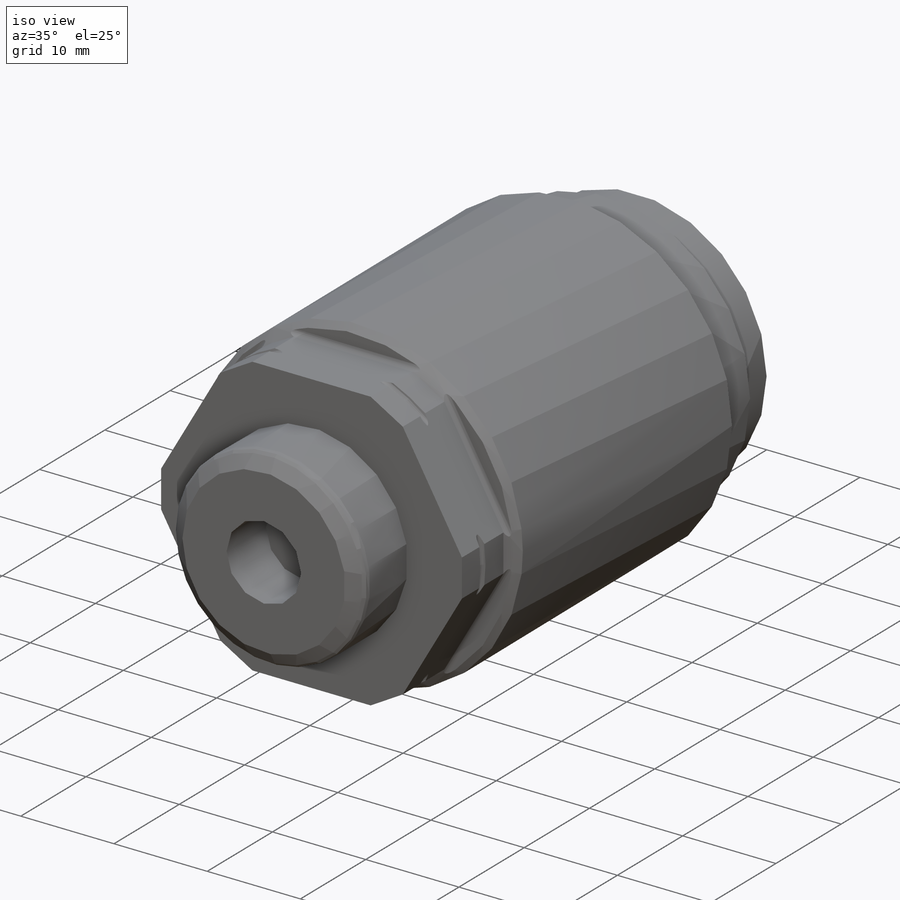
[diagram: iso view]
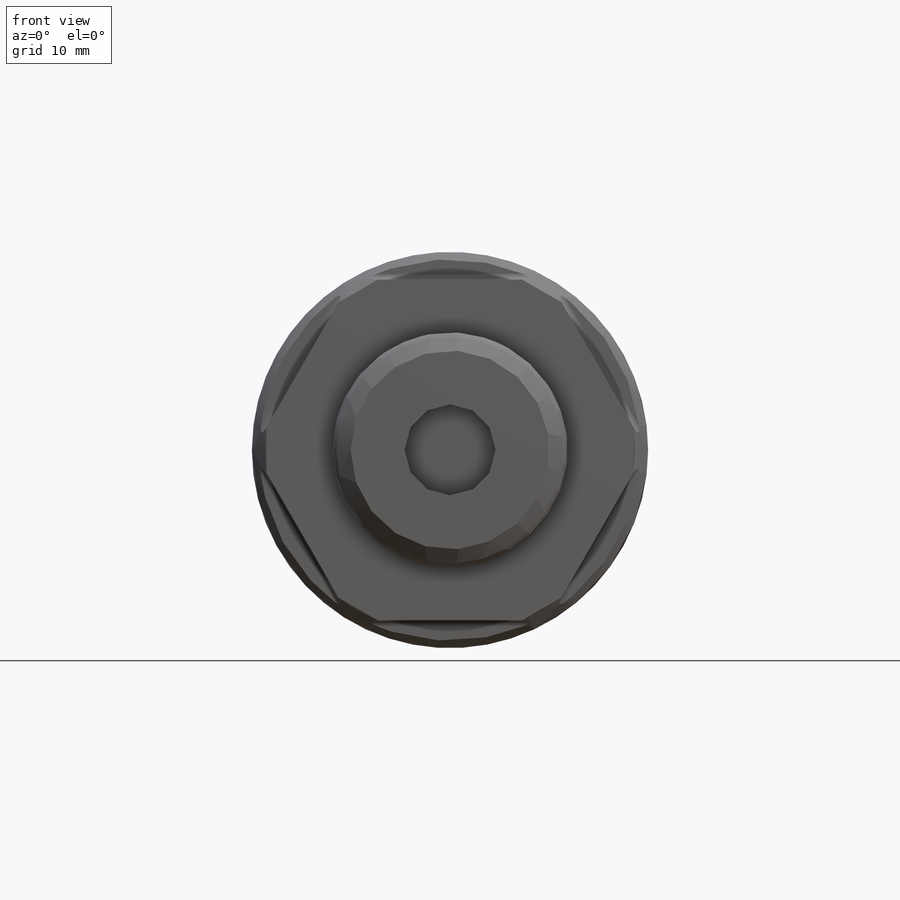
[diagram: front view]
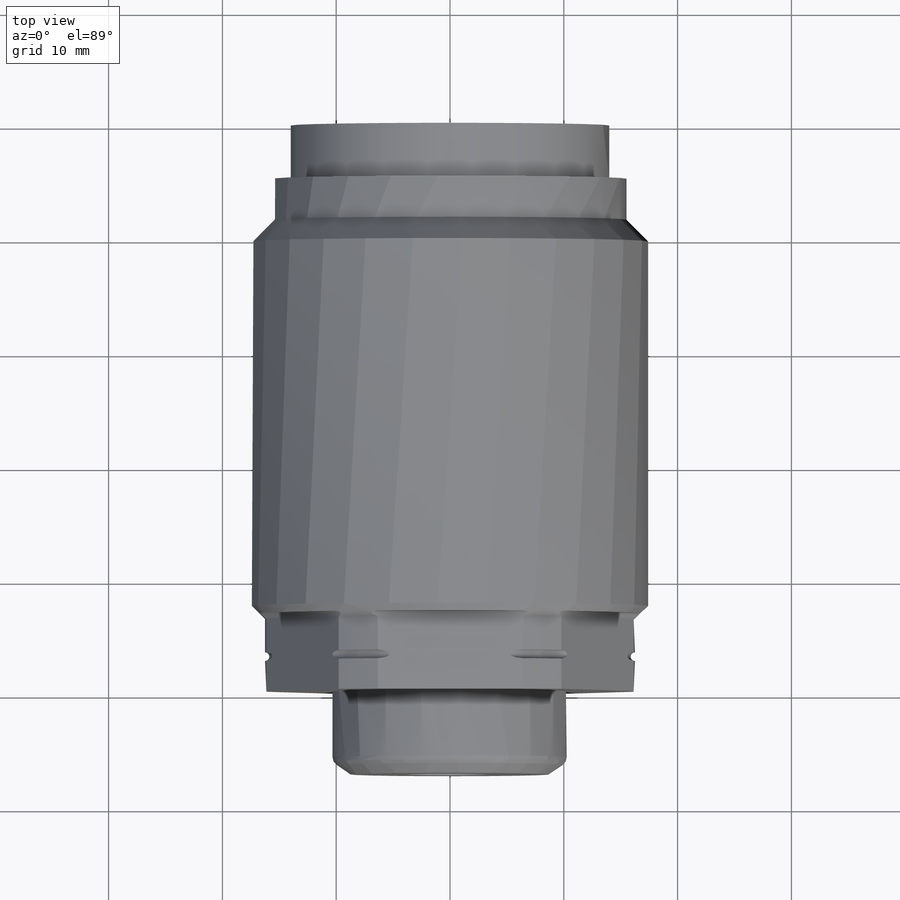
[diagram: top view]
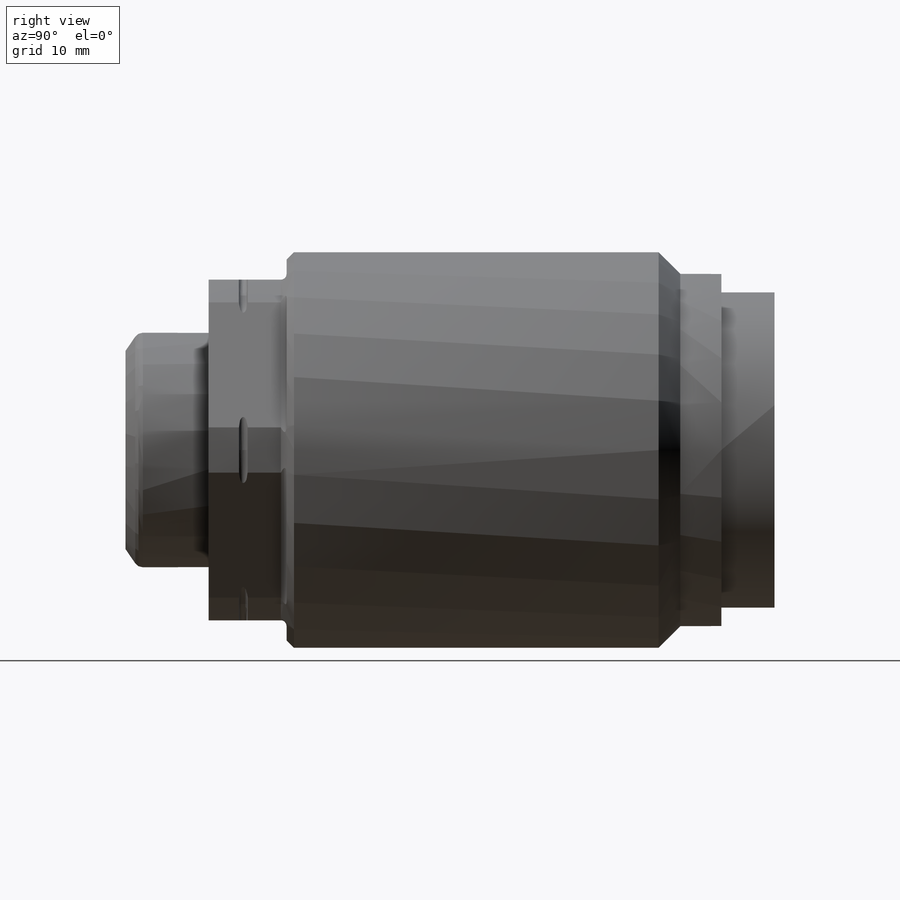
[diagram: right view]
SOLIDWORKS PART (.sldprt)
format: sldprt  version: not decoded by parser v0  size: 335,360 bytes
history: native  units: mm
features: sketch x5, revolve x2, cut_extrude x2, material x1, pattern_circular x1, cut_revolve x1 (+11 scaffold rows collapsed)
feature tree (23):
  scaffold x11  (default folders/planes/origin — collapsed)
  material  "Alloy Steel"
  sketch  "Sketch1"  dims[c1.D1=27.9908mm c1.D2=4.6736mm c1.D3=0.8128mm c1.D4=24.0792mm c1.D5=31.0134mm c1.D6=8.2804mm c1.D7=34.8234mm c1.D8=~16.415711mm c2.D8=45.0deg c2.D9=49.7332mm c2.D10=32.512mm c2.D11=~8.100487mm c3.D11=45.0deg c3.D12=6.35mm]
  revolve  "Revolve1"  Angle=360deg
  sketch  "Sketch2"  dims[D4=0.508mm D1=29.9339mm D2=6.858mm D3=3.175mm]
  cut_extrude  "Cut-Extrude1"  [1 undecoded]
  pattern_circular  "CirPattern1"  Count=6 Angle=360deg
  sketch  "Sketch3"  dims[D1=0.8128mm D2=20.6502mm D3=57.0357mm D4=1.524mm D5=17.4752mm]
  revolve  "Revolve2"  Angle=360deg
  sketch  "Sketch4"  dims[D1=8.001mm]
  cut_extrude  "Cut-Extrude2"  Depth=6.0452mm
  sketch  "Sketch5"  dims[D3=0.762mm D1=3.048mm D2=16.256mm D4=3.175mm]
  cut_revolve  "Cut-Revolve1"  Angle=360deg
decode coverage: 10 of 11 modeling features carry decoded parameters
note: ~ marks probable driven/reference dimensions
note: 1 parameter value undecoded
note: suppression state not decoded; provenance and decode notes live in map.json
